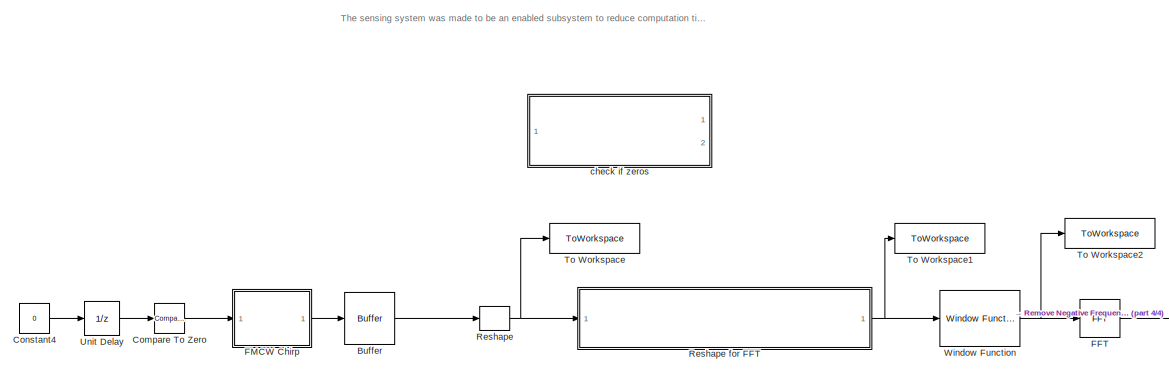
[diagram: root canvas - part 1/4, top left region]
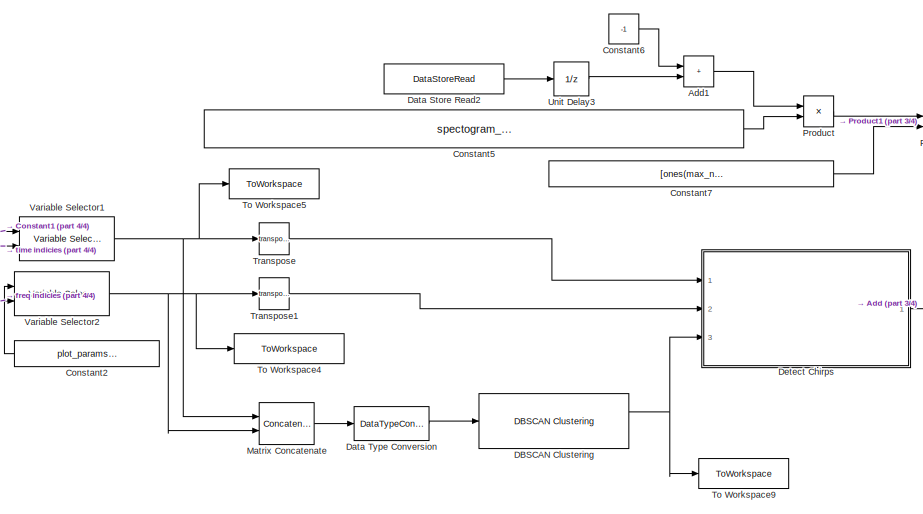
[diagram: root canvas - part 2/4, middle right region]
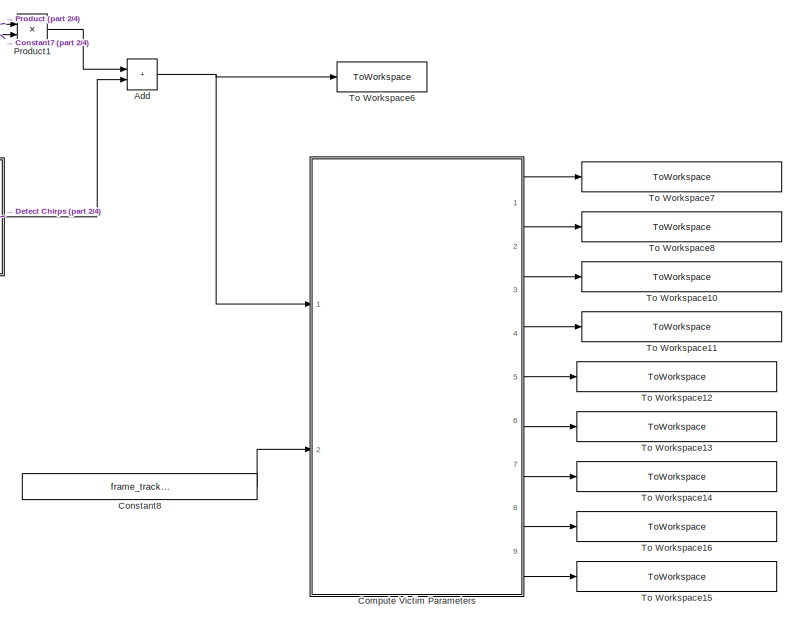
[diagram: root canvas - part 3/4, middle right region]
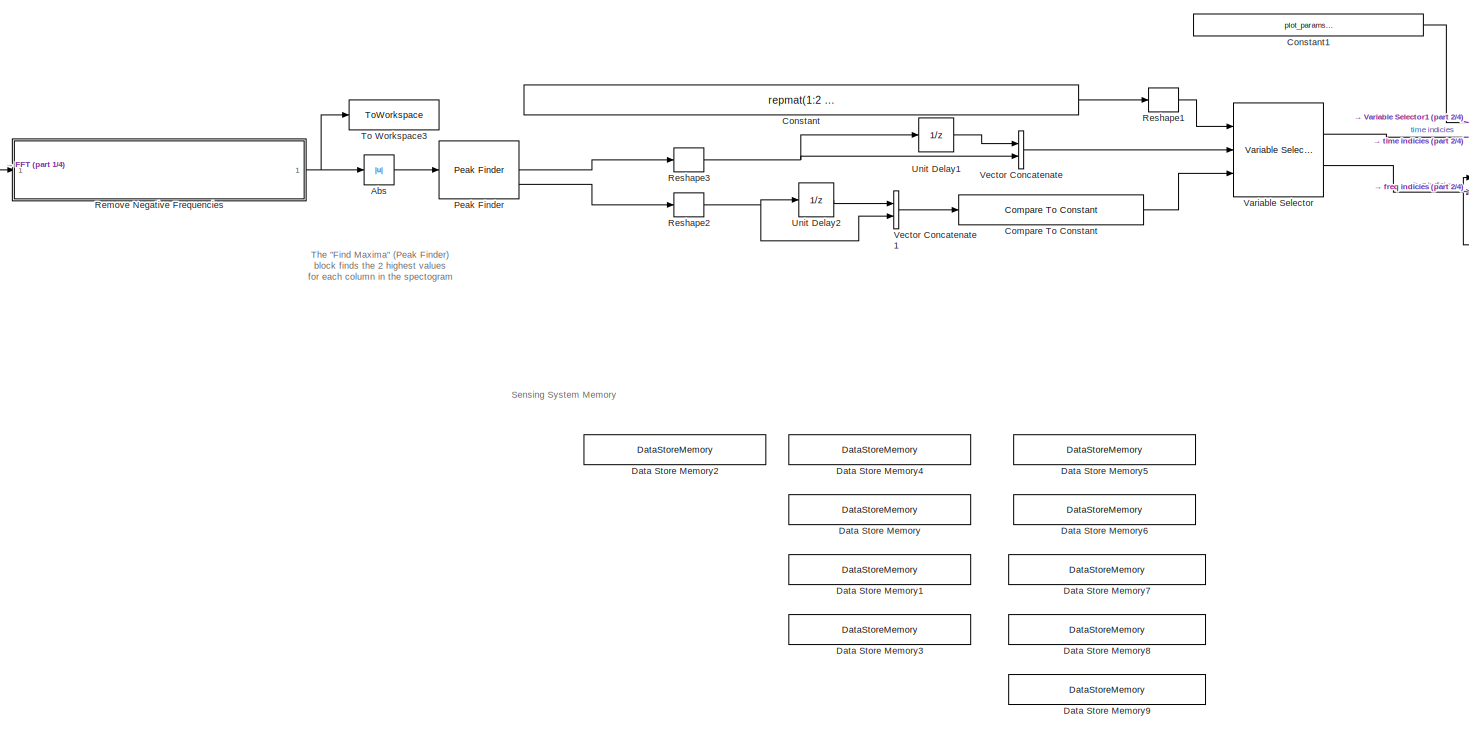
[diagram: root canvas - part 4/4, center side, full height]
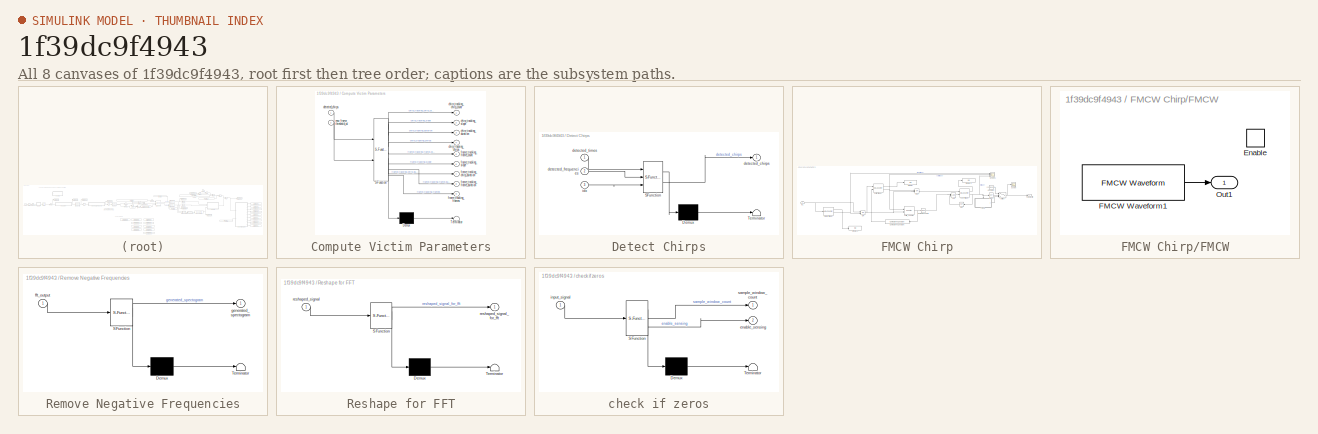
[diagram: thumbnail index - all 8 canvases of the model, root first then tree order]
MODEL slx_1f39dc9f4943
KIND model
CONFIG AbsTol = auto
CONFIG EnableMultiTasking = off
CONFIG FixedStep = auto
CONFIG MaxStep = auto
CONFIG MinStep = auto
CONFIG RelTol = 1e-3
CONFIG SampleTimeConstraint = Unconstrained
CONFIG SolverName = VariableStepAuto
CONFIG StartTime = 0.0
CONFIG StopTime = stop_time
BLOCK [Abs] Abs
  SaturateOnIntegerOverflow = off
BLOCK [Sum] Add
  IconShape = rectangular
  Ports = [2, 1]
BLOCK [Sum] Add1
  IconShape = rectangular
  Ports = [2, 1]
BLOCK [Buffer] Buffer
  N = int16(spectogram_params.num_ADC_samples_per_spectogram)
  OutputFrames = off
BLOCK [Reference] Compare To Constant  REF=simulink/Logic and Bit
Operations/Compare
To Constant
  Ports = [1, 1]
  SourceBlock = simulink/Logic and Bit\nOperations/Compare\nTo Constant
  SourceProductBaseCode = SL
  SourceType = Compare To Constant
BLOCK [Reference] Compare To Zero  REF=simulink/Logic and Bit
Operations/Compare
To Zero
  Ports = [1, 1]
  SourceBlock = simulink/Logic and Bit\nOperations/Compare\nTo Zero
  SourceProductBaseCode = SL
  SourceType = Compare To Zero
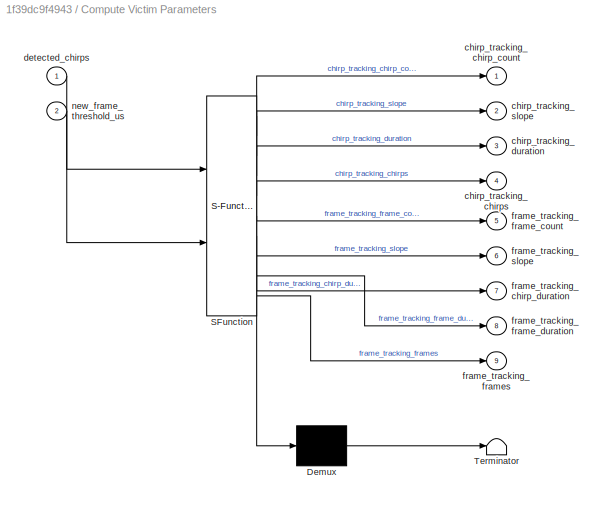
BLOCK [SubSystem] Compute Victim Parameters
  ErrorFcn = Stateflow.Translate.translate
  PermitHierarchicalResolution = ExplicitOnly
  Ports = [2, 9]
  RequestExecContextInheritance = off
  SFBlockType = MATLAB Function
  TreatAsAtomicUnit = on
BLOCK [Demux] Compute Victim Parameters/ Demux 
  Outputs = 1
  Ports = [1, 1]
BLOCK [S-Function] Compute Victim Parameters/ SFunction 
  EnableBusSupport = on
  FunctionName = sf_sfun
  Parameters = captured_chirps_buffer_size
  PortCounts = [2 10]
  Ports = [2, 10]
  SFcnIsStateOwnerBlock = off
  SFunctionDeploymentMode = off
  Tag = Stateflow S-Function 4
BLOCK [Terminator] Compute Victim Parameters/ Terminator 
BLOCK [Outport] Compute Victim Parameters/chirp_tracking_chirp_count
BLOCK [Outport] Compute Victim Parameters/chirp_tracking_chirps
  Port = 4
BLOCK [Outport] Compute Victim Parameters/chirp_tracking_duration
  Port = 3
BLOCK [Outport] Compute Victim Parameters/chirp_tracking_slope
  Port = 2
BLOCK [Inport] Compute Victim Parameters/detected_chirps
BLOCK [Outport] Compute Victim Parameters/frame_tracking_chirp_duration
  Port = 7
BLOCK [Outport] Compute Victim Parameters/frame_tracking_frame_count
  Port = 5
BLOCK [Outport] Compute Victim Parameters/frame_tracking_frame_duration
  Port = 8
BLOCK [Outport] Compute Victim Parameters/frame_tracking_frames
  Port = 9
BLOCK [Outport] Compute Victim Parameters/frame_tracking_slope
  Port = 6
BLOCK [Inport] Compute Victim Parameters/new_frame_threshold_us
  Port = 2
BLOCK [Constant] Constant
  OutDataTypeStr = uint32
  Value = repmat(1:2 * spectogram_params.num_freq_spectrum_samples_per_spectogram,peak_detection_params.numPeaks,1)
  VectorParams1D = off
BLOCK [Constant] Constant1
  Value = plot_params.combined_spectogram_times
BLOCK [Constant] Constant2
  Value = plot_params.frequencies
BLOCK [Constant] Constant4
  Value = 0
BLOCK [Constant] Constant5
  Value = spectogram_params.num_freq_spectrum_samples_per_spectogram * spectogram_params.freq_sampling_period_us
BLOCK [Constant] Constant6
  Value = -1
BLOCK [Constant] Constant7
  Value = [ones(max_num_clusters,1),zeros(max_num_clusters,1)]
BLOCK [Constant] Constant8
  Value = frame_tracking.new_frame_threshold_us
BLOCK [Reference] DBSCAN Clustering  REF=radarlib/DBSCAN Clustering
  Ports = [1, 2]
  SourceBlock = radarlib/DBSCAN Clustering
  SourceProductBaseCode = RA
  SourceType = radar.internal.SimulinkClusterDBSCAN
BLOCK [DataStoreMemory] Data Store Memory
  DataStoreName = chirp_tracking_captured_chirps
  InitialValue = zeros(chirp_tracking.captured_chirps_buffer_size, 2)
  OutDataTypeStr = double
  ReadBeforeWriteMsg = warning
  ShowAdditionalParam = off
  SignalType = real
  WriteAfterReadMsg = warning
  WriteAfterWriteMsg = warning
BLOCK [DataStoreMemory] Data Store Memory1
  DataStoreName = chirp_tracking_average_slope
  OutDataTypeStr = double
  ReadBeforeWriteMsg = warning
  ShowAdditionalParam = off
  SignalType = real
  WriteAfterReadMsg = warning
  WriteAfterWriteMsg = warning
BLOCK [DataStoreMemory] Data Store Memory2
  DataStoreName = sampling_window_count
  InitialValue = -1
  OutDataTypeStr = int16
  ReadBeforeWriteMsg = warning
  ShowAdditionalParam = off
  SignalType = real
  VectorParams1D = off
  WriteAfterReadMsg = warning
  WriteAfterWriteMsg = warning
BLOCK [DataStoreMemory] Data Store Memory3
  DataStoreName = chirp_tracking_average_chirp_duration
  InitialValue = 20
  OutDataTypeStr = double
  ReadBeforeWriteMsg = warning
  ShowAdditionalParam = off
  SignalType = real
  WriteAfterReadMsg = warning
  WriteAfterWriteMsg = warning
BLOCK [DataStoreMemory] Data Store Memory4
  DataStoreName = chirp_tracking_num_captured_chirps
  OutDataTypeStr = int16
  ReadBeforeWriteMsg = warning
  ShowAdditionalParam = off
  SignalType = real
  WriteAfterReadMsg = warning
  WriteAfterWriteMsg = warning
BLOCK [DataStoreMemory] Data Store Memory5
  DataStoreName = frame_tracking_num_captured_frames
  OutDataTypeStr = int16
  ReadBeforeWriteMsg = warning
  ShowAdditionalParam = off
  SignalType = real
  WriteAfterReadMsg = warning
  WriteAfterWriteMsg = warning
BLOCK [DataStoreMemory] Data Store Memory6
  DataStoreName = frame_tracking_captured_frames
  InitialValue = zeros(frame_tracking.captured_frames_buffer_size,7)
  OutDataTypeStr = double
  ReadBeforeWriteMsg = warning
  ShowAdditionalParam = off
  SignalType = real
  WriteAfterReadMsg = warning
  WriteAfterWriteMsg = warning
BLOCK [DataStoreMemory] Data Store Memory7
  DataStoreName = frame_tracking_average_frame_duration
  OutDataTypeStr = double
  ReadBeforeWriteMsg = warning
  ShowAdditionalParam = off
  SignalType = real
  WriteAfterReadMsg = warning
  WriteAfterWriteMsg = warning
BLOCK [DataStoreMemory] Data Store Memory8
  DataStoreName = frame_tracking_average_chirp_duration
  OutDataTypeStr = double
  ReadBeforeWriteMsg = warning
  ShowAdditionalParam = off
  SignalType = real
  WriteAfterReadMsg = warning
  WriteAfterWriteMsg = warning
BLOCK [DataStoreMemory] Data Store Memory9
  DataStoreName = frame_tracking_average_slope
  OutDataTypeStr = double
  ReadBeforeWriteMsg = warning
  ShowAdditionalParam = off
  SignalType = real
  WriteAfterReadMsg = warning
  WriteAfterWriteMsg = warning
BLOCK [DataStoreRead] Data Store Read2
  DataStoreName = sampling_window_count
  IndexOptions = Index vector (dialog)
  Indices = 1
  OutputSizes = 1
  Ports = [0, 1]
BLOCK [DataTypeConversion] Data Type Conversion
  OutDataTypeStr = double
  RndMeth = Floor
  SaturateOnIntegerOverflow = off
BLOCK [SubSystem] Detect Chirps
  ErrorFcn = Stateflow.Translate.translate
  PermitHierarchicalResolution = ExplicitOnly
  Ports = [3, 1]
  RequestExecContextInheritance = off
  SFBlockType = MATLAB Function
  TreatAsAtomicUnit = on
BLOCK [Demux] Detect Chirps/ Demux 
  Outputs = 1
  Ports = [1, 1]
BLOCK [S-Function] Detect Chirps/ SFunction 
  EnableBusSupport = on
  FunctionName = sf_sfun
  Parameters = max_num_clusters,threshold
  PortCounts = [3 2]
  Ports = [3, 2]
  SFcnIsStateOwnerBlock = off
  SFunctionDeploymentMode = off
  Tag = Stateflow S-Function 3
BLOCK [Terminator] Detect Chirps/ Terminator 
BLOCK [Outport] Detect Chirps/detected_chirps
BLOCK [Inport] Detect Chirps/detected_frequencies
  Port = 2
BLOCK [Inport] Detect Chirps/detected_times
BLOCK [Inport] Detect Chirps/idx
  Port = 3
BLOCK [Reference] FFT  REF=dspxfrm3/FFT
  Ports = [1, 1]
  SourceBlock = dspxfrm3/FFT
  SourceProductBaseCode = DS
  SourceType = FFT
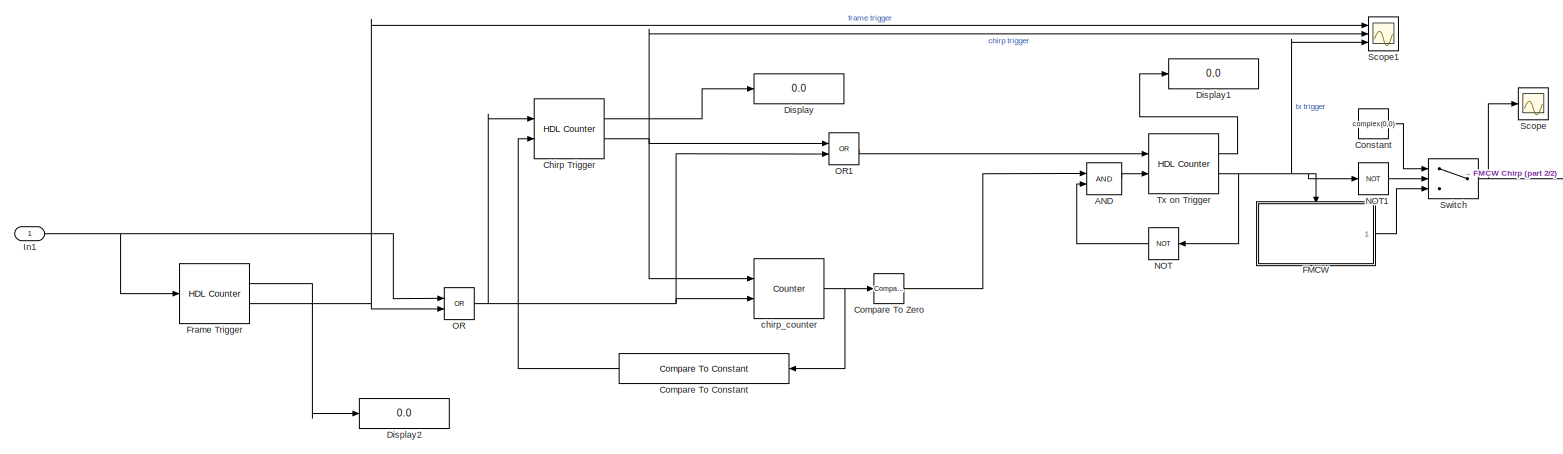
[diagram: FMCW Chirp - part 1/2, most of the canvas]
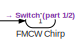
[diagram: FMCW Chirp - part 2/2, middle right region]
BLOCK [SubSystem] FMCW Chirp
  Ports = [1, 1]
  RequestExecContextInheritance = off
BLOCK [Logic] FMCW Chirp/AND
  AllPortsSameDT = off
  IconShape = distinctive
  OutDataTypeStr = boolean
  Ports = [2, 1]
BLOCK [Reference] FMCW Chirp/Chirp Trigger  REF=hdlsllib/Sources/HDL Counter
  Ports = [2, 2]
  SourceBlock = hdlsllib/Sources/HDL Counter
  SourceProductBaseCode = SL
  SourceType = HDL Counter
BLOCK [Reference] FMCW Chirp/Compare To Constant  REF=simulink/Logic and Bit
Operations/Compare
To Constant
  Ports = [1, 1]
  SourceBlock = simulink/Logic and Bit\nOperations/Compare\nTo Constant
  SourceProductBaseCode = SL
  SourceType = Compare To Constant
BLOCK [Reference] FMCW Chirp/Compare To Zero  REF=hdlsllib/Logic and Bit
Operations/Compare
To Zero
  Ports = [1, 1]
  SourceBlock = hdlsllib/Logic and Bit\nOperations/Compare\nTo Zero
  SourceProductBaseCode = SL
  SourceType = Compare To Zero
BLOCK [Constant] FMCW Chirp/Constant
  Value = complex(0,0)
BLOCK [Display] FMCW Chirp/Display
  Commented = on
  Decimation = 1
  Ports = [1]
BLOCK [Display] FMCW Chirp/Display1
  Commented = on
  Decimation = 1
  Ports = [1]
BLOCK [Display] FMCW Chirp/Display2
  Commented = on
  Decimation = 1
  Ports = [1]
BLOCK [SubSystem] FMCW Chirp/FMCW
  Ports = [0, 1, 1]
  RequestExecContextInheritance = off
BLOCK [Outport] FMCW Chirp/FMCW Chirp
BLOCK [EnablePort] FMCW Chirp/FMCW/Enable
  Ports = []
  StatesWhenEnabling = reset
BLOCK [Reference] FMCW Chirp/FMCW/FMCW Waveform1  REF=phasedwavlib/FMCW Waveform
  Ports = [0, 1]
  SourceBlock = phasedwavlib/FMCW Waveform
  SourceProductBaseCode = AR
  SourceType = phased.FMCWWaveform
BLOCK [Outport] FMCW Chirp/FMCW/Out1
BLOCK [Reference] FMCW Chirp/Frame Trigger  REF=hdlsllib/Sources/HDL Counter
  Ports = [1, 2]
  SourceBlock = hdlsllib/Sources/HDL Counter
  SourceProductBaseCode = SL
  SourceType = HDL Counter
BLOCK [Inport] FMCW Chirp/In1
BLOCK [Logic] FMCW Chirp/NOT
  AllPortsSameDT = off
  IconShape = distinctive
  Operator = NOT
  OutDataTypeStr = boolean
  Ports = [1, 1]
BLOCK [Logic] FMCW Chirp/NOT1
  AllPortsSameDT = off
  IconShape = distinctive
  Operator = NOT
  OutDataTypeStr = boolean
  Ports = [1, 1]
BLOCK [Logic] FMCW Chirp/OR
  AllPortsSameDT = off
  IconShape = distinctive
  Operator = OR
  OutDataTypeStr = boolean
  Ports = [2, 1]
BLOCK [Logic] FMCW Chirp/OR1
  AllPortsSameDT = off
  IconShape = distinctive
  Operator = OR
  OutDataTypeStr = boolean
  Ports = [2, 1]
BLOCK [Scope] FMCW Chirp/Scope
  Commented = on
  Floating = off
  NumInputPorts = 1
  Ports = [1]
  ScopeSpecificationString = Simulink.scopes.TimeScopeBlockCfg('CurrentConfiguration', extmgr.ConfigurationSet(extmgr.Configuration('Core','General UI',true),extmgr.Configuration('Core','Source UI',true),extmgr.Configuration('Sources','WiredSimulink',true),extmgr.Configuration('Visuals','Time Domain',true,'SerializedDisplays',{struct('MinYLimReal','-1.25','MaxYLimReal','1.25','YLabelReal','','MinYLimMag','0.00000','MaxYLimMag...<+1356ch>
BLOCK [Scope] FMCW Chirp/Scope1
  Commented = on
  Floating = off
  NumInputPorts = 3
  Ports = [3]
  ScopeSpecificationString = Simulink.scopes.TimeScopeBlockCfg('CurrentConfiguration', extmgr.ConfigurationSet(extmgr.Configuration('Core','General UI',true),extmgr.Configuration('Core','Source UI',true),extmgr.Configuration('Sources','WiredSimulink',true,'DataLoggingVariableName','ScopeData1'),extmgr.Configuration('Visuals','Time Domain',true,'SerializedDisplays',{struct('MinYLimReal','-0.125','MaxYLimReal','1.125','YLabelRe...<+1488ch>
BLOCK [Switch] FMCW Chirp/Switch
  Criteria = u2 > Threshold
  InputSameDT = off
  SaturateOnIntegerOverflow = off
BLOCK [Reference] FMCW Chirp/Tx on Trigger  REF=hdlsllib/Sources/HDL Counter
  Ports = [2, 2]
  SourceBlock = hdlsllib/Sources/HDL Counter
  SourceProductBaseCode = SL
  SourceType = HDL Counter
BLOCK [Reference] FMCW Chirp/chirp_counter  REF=dspswit3/Counter
  Ports = [2, 1]
  SourceBlock = dspswit3/Counter
  SourceProductBaseCode = DS
  SourceType = Counter
BLOCK [Concatenate] Matrix Concatenate
  ConcatenateDimension = 2
  Mode = Multidimensional array
  Ports = [2, 1]
BLOCK [Reference] Peak Finder  REF=dspsigops/Peak Finder
  Ports = [1, 3]
  SourceBlock = dspsigops/Peak Finder
  SourceProductBaseCode = DS
  SourceType = Peak Finder
BLOCK [Product] Product
  Ports = [2, 1]
BLOCK [Product] Product1
  Ports = [2, 1]
BLOCK [SubSystem] Remove Negative Frequencies
  ErrorFcn = Stateflow.Translate.translate
  PermitHierarchicalResolution = ExplicitOnly
  Ports = [1, 1]
  RequestExecContextInheritance = off
  SFBlockType = MATLAB Function
  TreatAsAtomicUnit = on
BLOCK [Demux] Remove Negative Frequencies/ Demux 
  Outputs = 1
  Ports = [1, 1]
BLOCK [S-Function] Remove Negative Frequencies/ SFunction 
  EnableBusSupport = on
  FunctionName = sf_sfun
  Parameters = half_fft_size
  PortCounts = [1 2]
  Ports = [1, 2]
  SFcnIsStateOwnerBlock = off
  SFunctionDeploymentMode = off
  Tag = Stateflow S-Function 1
BLOCK [Terminator] Remove Negative Frequencies/ Terminator 
BLOCK [Inport] Remove Negative Frequencies/fft_output
BLOCK [Outport] Remove Negative Frequencies/generated_spectogram
BLOCK [Reshape] Reshape
  OutputDimensionality = Customize
  OutputDimensions = [spectogram_params.num_ADC_samples_per_spectogram / spectogram_params.num_freq_spectrum_samples_per_spectogram, spectogram_params.num_freq_spectrum_samples_per_spectogram]
  Ports = [1, 1]
BLOCK [SubSystem] Reshape for FFT
  ErrorFcn = Stateflow.Translate.translate
  PermitHierarchicalResolution = ExplicitOnly
  Ports = [1, 1]
  RequestExecContextInheritance = off
  SFBlockType = MATLAB Function
  TreatAsAtomicUnit = on
BLOCK [Demux] Reshape for FFT/ Demux 
  Outputs = 1
  Ports = [1, 1]
BLOCK [S-Function] Reshape for FFT/ SFunction 
  EnableBusSupport = on
  FunctionName = sf_sfun
  Parameters = fft_size
  PortCounts = [1 2]
  Ports = [1, 2]
  SFcnIsStateOwnerBlock = off
  SFunctionDeploymentMode = off
  Tag = Stateflow S-Function 2
BLOCK [Terminator] Reshape for FFT/ Terminator 
BLOCK [Inport] Reshape for FFT/reshaped_signal
BLOCK [Outport] Reshape for FFT/reshaped_signal_for_fft
BLOCK [Reshape] Reshape1
  Ports = [1, 1]
BLOCK [Reshape] Reshape2
  Ports = [1, 1]
BLOCK [Reshape] Reshape3
  Ports = [1, 1]
BLOCK [ToWorkspace] To Workspace
  FixptAsFi = on
  MaxDataPoints = 2
  Ports = [1]
  SampleTime = -1
  VariableName = reshaped_signal
BLOCK [ToWorkspace] To Workspace1
  FixptAsFi = on
  MaxDataPoints = 2
  Ports = [1]
  SampleTime = -1
  VariableName = reshaped_signal_for_fft
BLOCK [ToWorkspace] To Workspace10
  FixptAsFi = on
  MaxDataPoints = 2
  Ports = [1]
  SampleTime = -1
  VariableName = chirp_tracking_duration
BLOCK [ToWorkspace] To Workspace11
  FixptAsFi = on
  MaxDataPoints = 2
  Ports = [1]
  SampleTime = -1
  VariableName = chirp_tracking_captured_chirps
BLOCK [ToWorkspace] To Workspace12
  FixptAsFi = on
  MaxDataPoints = 2
  Ports = [1]
  SampleTime = -1
  VariableName = frame_tracking_frame_count
BLOCK [ToWorkspace] To Workspace13
  FixptAsFi = on
  MaxDataPoints = 2
  Ports = [1]
  SampleTime = -1
  VariableName = frame_tracking_slope
BLOCK [ToWorkspace] To Workspace14
  FixptAsFi = on
  MaxDataPoints = 2
  Ports = [1]
  SampleTime = -1
  VariableName = frame_tracking_chirp_duration
BLOCK [ToWorkspace] To Workspace15
  FixptAsFi = on
  MaxDataPoints = 2
  Ports = [1]
  SampleTime = -1
  VariableName = frame_tracking_frames
BLOCK [ToWorkspace] To Workspace16
  FixptAsFi = on
  MaxDataPoints = 2
  Ports = [1]
  SampleTime = -1
  VariableName = frame_tracking_frame_duration
BLOCK [ToWorkspace] To Workspace2
  FixptAsFi = on
  MaxDataPoints = 2
  Ports = [1]
  SampleTime = -1
  VariableName = windowed_signal
BLOCK [ToWorkspace] To Workspace3
  FixptAsFi = on
  MaxDataPoints = 2
  Ports = [1]
  SampleTime = -1
  VariableName = generated_spectogram
BLOCK [ToWorkspace] To Workspace4
  FixptAsFi = on
  MaxDataPoints = 2
  Ports = [1]
  SampleTime = -1
  VariableName = detected_frequencies
BLOCK [ToWorkspace] To Workspace5
  FixptAsFi = on
  MaxDataPoints = 2
  Ports = [1]
  SampleTime = -1
  VariableName = detected_times
BLOCK [ToWorkspace] To Workspace6
  FixptAsFi = on
  MaxDataPoints = 2
  Ports = [1]
  SampleTime = -1
  VariableName = detected_chirps
BLOCK [ToWorkspace] To Workspace7
  FixptAsFi = on
  MaxDataPoints = 2
  Ports = [1]
  SampleTime = -1
  VariableName = chirp_tracking_chirp_count
BLOCK [ToWorkspace] To Workspace8
  FixptAsFi = on
  MaxDataPoints = 2
  Ports = [1]
  SampleTime = -1
  VariableName = chirp_tracking_slope
BLOCK [ToWorkspace] To Workspace9
  FixptAsFi = on
  MaxDataPoints = 2
  Ports = [1]
  SampleTime = -1
  VariableName = idx
BLOCK [Math] Transpose
  Operator = transpose
  Ports = [1, 1]
BLOCK [Math] Transpose1
  Operator = transpose
  Ports = [1, 1]
BLOCK [UnitDelay] Unit Delay
  HasFrameUpgradeWarning = on
  InitialCondition = 1
  SampleTime = -1
BLOCK [UnitDelay] Unit Delay1
  HasFrameUpgradeWarning = on
  SampleTime = -1
BLOCK [UnitDelay] Unit Delay2
  HasFrameUpgradeWarning = on
  SampleTime = -1
BLOCK [UnitDelay] Unit Delay3
  HasFrameUpgradeWarning = on
  SampleTime = -1
BLOCK [Reference] Variable Selector  REF=dspindex/Variable
Selector
  Ports = [3, 2]
  SourceBlock = dspindex/Variable\nSelector
  SourceProductBaseCode = DS
  SourceType = Variable Selector
BLOCK [Reference] Variable Selector1  REF=dspindex/Variable
Selector
  Ports = [2, 1]
  SourceBlock = dspindex/Variable\nSelector
  SourceProductBaseCode = DS
  SourceType = Variable Selector
BLOCK [Reference] Variable Selector2  REF=dspindex/Variable
Selector
  Ports = [2, 1]
  SourceBlock = dspindex/Variable\nSelector
  SourceProductBaseCode = DS
  SourceType = Variable Selector
BLOCK [Concatenate] Vector Concatenate
  Ports = [2, 1]
BLOCK [Concatenate] Vector Concatenate1
  Ports = [2, 1]
BLOCK [Reference] Window Function  REF=dspsigops/Window
Function
  Ports = [1, 1]
  SourceBlock = dspsigops/Window\nFunction
  SourceProductBaseCode = DS
  SourceType = Window Function
BLOCK [SubSystem] check if zeros
  Commented = on
  ErrorFcn = Stateflow.Translate.translate
  PermitHierarchicalResolution = ExplicitOnly
  Ports = [1, 2]
  RequestExecContextInheritance = off
  SFBlockType = MATLAB Function
  TreatAsAtomicUnit = on
BLOCK [Demux] check if zeros/ Demux 
  Outputs = 1
  Ports = [1, 1]
BLOCK [S-Function] check if zeros/ SFunction 
  EnableBusSupport = on
  FunctionName = sf_sfun
  PortCounts = [1 3]
  Ports = [1, 3]
  SFcnIsStateOwnerBlock = off
  SFunctionDeploymentMode = off
  Tag = Stateflow S-Function 5
BLOCK [Terminator] check if zeros/ Terminator 
BLOCK [Outport] check if zeros/enable_sensing
  Port = 2
BLOCK [Inport] check if zeros/input_signal
BLOCK [Outport] check if zeros/sample_window_count
ANNOTATION (root): Sensing System Memory
ANNOTATION (root): The "Find Maxima" (Peak Finder) block finds the 2 highest values for each column in the spectogram
ANNOTATION (root): The sensing system was made to be an enabled subsystem to reduce computation time when the victim radar is idle (most of the time). To test without this reduction, just set the enabled to be always 1
LINE Abs:1 -> Peak Finder:1
LINE Add1:1 -> Product:1
NET Add:1 -> Compute Victim Parameters:1, To Workspace6:1
LINE Buffer:1 -> Reshape:1
LINE Compare To Constant:1 -> Variable Selector:3
LINE Compare To Zero:1 -> FMCW Chirp:1
LINE Compute Victim Parameters:1 -> To Workspace7:1
LINE Compute Victim Parameters:2 -> To Workspace8:1
LINE Compute Victim Parameters:3 -> To Workspace10:1
LINE Compute Victim Parameters:4 -> To Workspace11:1
LINE Compute Victim Parameters:5 -> To Workspace12:1
LINE Compute Victim Parameters:6 -> To Workspace13:1
LINE Compute Victim Parameters:7 -> To Workspace14:1
LINE Compute Victim Parameters:8 -> To Workspace16:1
LINE Compute Victim Parameters:9 -> To Workspace15:1
LINE Constant1:1 -> Variable Selector1:1
LINE Constant2:1 -> Variable Selector2:1
LINE Constant4:1 -> Unit Delay:1
LINE Constant5:1 -> Product:2
LINE Constant6:1 -> Add1:1
LINE Constant7:1 -> Product1:2
LINE Constant8:1 -> Compute Victim Parameters:2
LINE Constant:1 -> Reshape1:1
NET DBSCAN Clustering:1 -> Detect Chirps:3, To Workspace9:1
LINE Data Store Read2:1 -> Unit Delay3:1
LINE Data Type Conversion:1 -> DBSCAN Clustering:1
LINE Detect Chirps:1 -> Add:2
LINE FFT:1 -> Remove Negative Frequencies:1
LINE FMCW Chirp/AND:1 -> FMCW Chirp/Tx on Trigger:2
LINE FMCW Chirp/Chirp Trigger:1 -> FMCW Chirp/Display:1
NET FMCW Chirp/Chirp Trigger:2 -> FMCW Chirp/OR1:1, FMCW Chirp/Scope1:2, FMCW Chirp/chirp_counter:1
LINE FMCW Chirp/Compare To Constant:1 -> FMCW Chirp/Chirp Trigger:2
LINE FMCW Chirp/Compare To Zero:1 -> FMCW Chirp/AND:1
LINE FMCW Chirp/Constant:1 -> FMCW Chirp/Switch:1
LINE FMCW Chirp/FMCW/FMCW Waveform1:1 -> FMCW Chirp/FMCW/Out1:1
LINE FMCW Chirp/FMCW:1 -> FMCW Chirp/Switch:3
LINE FMCW Chirp/Frame Trigger:1 -> FMCW Chirp/Display2:1
NET FMCW Chirp/Frame Trigger:2 -> FMCW Chirp/OR:2, FMCW Chirp/Scope1:1
NET FMCW Chirp/In1:1 -> FMCW Chirp/Frame Trigger:1, FMCW Chirp/OR:1
LINE FMCW Chirp/NOT1:1 -> FMCW Chirp/Switch:2
LINE FMCW Chirp/NOT:1 -> FMCW Chirp/AND:2
LINE FMCW Chirp/OR1:1 -> FMCW Chirp/Tx on Trigger:1
NET FMCW Chirp/OR:1 -> FMCW Chirp/Chirp Trigger:1, FMCW Chirp/OR1:2, FMCW Chirp/chirp_counter:2
NET FMCW Chirp/Switch:1 -> FMCW Chirp/FMCW Chirp:1, FMCW Chirp/Scope:1
LINE FMCW Chirp/Tx on Trigger:1 -> FMCW Chirp/Display1:1
NET FMCW Chirp/Tx on Trigger:2 -> FMCW Chirp/FMCW:enable, FMCW Chirp/NOT1:1, FMCW Chirp/NOT:1, FMCW Chirp/Scope1:3
NET FMCW Chirp/chirp_counter:1 -> FMCW Chirp/Compare To Constant:1, FMCW Chirp/Compare To Zero:1
LINE FMCW Chirp:1 -> Buffer:1
LINE Matrix Concatenate:1 -> Data Type Conversion:1
LINE Peak Finder:2 -> Reshape3:1
LINE Peak Finder:3 -> Reshape2:1
LINE Product1:1 -> Add:1
LINE Product:1 -> Product1:1
NET Remove Negative Frequencies:1 -> Abs:1, To Workspace3:1
NET Reshape for FFT:1 -> To Workspace1:1, Window Function:1
LINE Reshape1:1 -> Variable Selector:1
NET Reshape2:1 -> Unit Delay2:1, Vector Concatenate1:2
NET Reshape3:1 -> Unit Delay1:1, Vector Concatenate:2
NET Reshape:1 -> Reshape for FFT:1, To Workspace:1
LINE Transpose1:1 -> Detect Chirps:2
LINE Transpose:1 -> Detect Chirps:1
LINE Unit Delay1:1 -> Vector Concatenate:1
LINE Unit Delay2:1 -> Vector Concatenate1:1
LINE Unit Delay3:1 -> Add1:2
LINE Unit Delay:1 -> Compare To Zero:1
NET Variable Selector1:1 -> Matrix Concatenate:1, To Workspace5:1, Transpose:1
NET Variable Selector2:1 -> Matrix Concatenate:2, To Workspace4:1, Transpose1:1
LINE Variable Selector:1 -> Variable Selector1:2
LINE Variable Selector:2 -> Variable Selector2:2
LINE Vector Concatenate1:1 -> Compare To Constant:1
LINE Vector Concatenate:1 -> Variable Selector:2
NET Window Function:1 -> FFT:1, To Workspace2:1
note: NET lines group one-source signal fan-out (src -> all destinations, sorted); 1:1 wires keep LINE
CHART Remove Negative Frequencies states=1 transitions=1
  STATE_LABEL 'eML_blk_kernel()'
  STATE_LABEL 'SCRIPT:\nfunction generated_spectogram = remove_negative_frequencies(fft_output, half_fft_size)\n   \ngenerated_spectogram = fft_output(1:half_fft_size,:);\n'
CHART Reshape for FFT states=1 transitions=1
  STATE_LABEL 'eML_blk_kernel()'
  STATE_LABEL 'SCRIPT:\nfunction reshaped_signal_for_fft = reshape_for_fft(reshaped_signal, fft_size)\n   \nreshaped_signal_for_fft = reshaped_signal(1:fft_size,:);\n'
CHART Detect Chirps states=1 transitions=1
  STATE_LABEL 'eML_blk_kernel()'
  STATE_LABEL 'SCRIPT:\nfunction detected_chirps  = detect_chirps(detected_times,detected_frequencies,idx,max_num_clusters,threshold)\n    %solve for the linear equation for each cluster provided there are enough\n    %points\n    detected_chirps = zeros(max_num_clusters,2);\n    global sampling_window_count;\n    for cluster_id = 1:max(idx)\n        %solve for linear model using linear algrebra\n        %y is frequenci...<+456ch>'
CHART Compute Victim Parameters states=1 transitions=1
  STATE_LABEL 'eML_blk_kernel()'
  STATE_LABEL 'SCRIPT:\nfunction [chirp_tracking_chirp_count, chirp_tracking_slope, chirp_tracking_duration, chirp_tracking_chirps,...\n    frame_tracking_frame_count,frame_tracking_slope,frame_tracking_chirp_duration,frame_tracking_frame_duration, frame_tracking_frames] ...\n    = compute_victim_parameters(detected_chirps, new_frame_threshold_us, captured_chirps_buffer_size)\n    \n\n    %declare global variables for...<+3608ch>'
CHART check if zeros states=1 transitions=1
  STATE_LABEL 'eML_blk_kernel()'
  STATE_LABEL 'SCRIPT:\nfunction [sample_window_count,enable_sensing] = fcn(input_signal)\n    global sampling_window_count\n    if ~all(input_signal == 0,"all")\n        enable_sensing = 1;\n    else\n        enable_sensing = 0;\n        if sampling_window_count > 0\n            sampling_window_count = sampling_window_count + 1;\n        end\n    end\n    sample_window_count = sampling_window_count;\nend'
CHART  states=0 transitions=0
CHART  states=0 transitions=0
CHART  states=0 transitions=0
CHART  states=0 transitions=0
CHART  states=0 transitions=0
